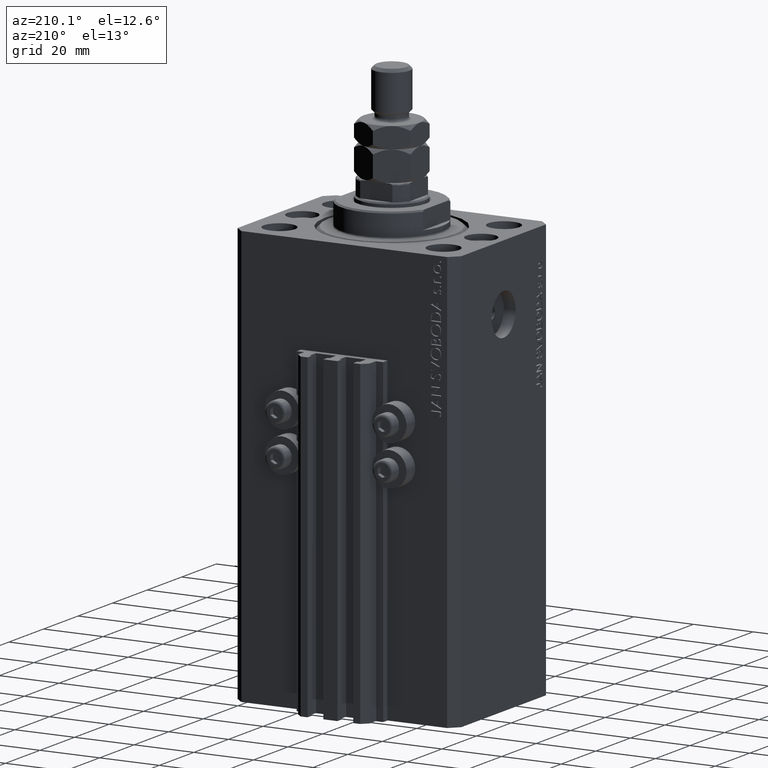
[diagram: clean part render]
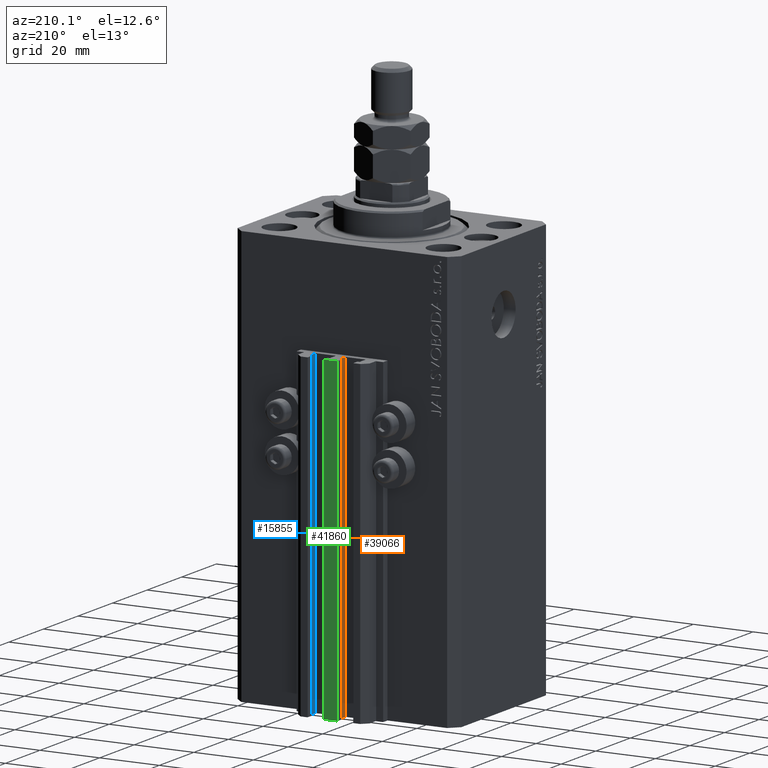
[diagram: same view with three faces highlighted in distinct colors, each labeled with its STEP entity id]
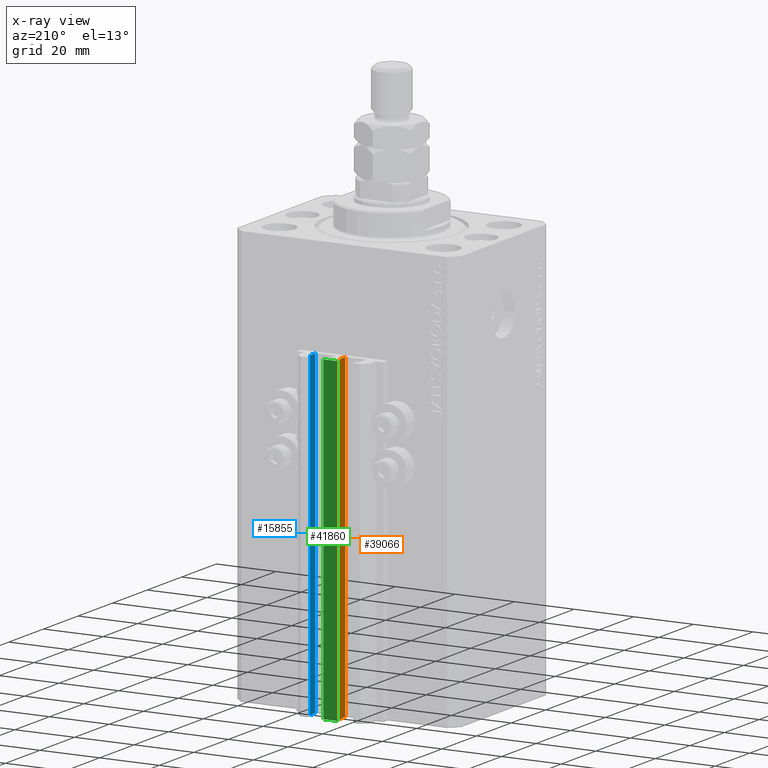
[diagram: x-ray of the same camera — body ghosted, the three highlighted faces saturated]
A machine part, auxiliary view with three faces highlighted in distinct colors.
The next image is the same camera in x-ray (body ghosted, the three faces saturated) — at least one of them is partly hidden behind the body in this view.
Their STEP definitions:

[orange] entity #39066 — the highlighted planar face has unit normal (-1, 0, 0).
#440 = ORIENTED_EDGE ( 'NONE', *, *, #8337, .T. ) ;
#634 = CARTESIAN_POINT ( 'NONE',  ( -1.599999999999997868, 32.90000000000001279, -33.00000000000000000 ) ) ;
#1883 = DIRECTION ( 'NONE',  ( -1.000000000000000000, 6.776263578034378061E-17, 0.000000000000000000 ) ) ;
#2858 = CARTESIAN_POINT ( 'NONE',  ( -1.600000000000000533, 32.90000000000001279, -140.0000000000000000 ) ) ;
#8337 = EDGE_CURVE ( 'NONE', #46214, #12494, #34998, .T. ) ;
#8568 = ORIENTED_EDGE ( 'NONE', *, *, #9926, .F. ) ;
#9541 = DIRECTION ( 'NONE',  ( -6.776263578034378061E-17, -1.000000000000000000, 0.000000000000000000 ) ) ;
#9752 = CARTESIAN_POINT ( 'NONE',  ( -1.599999999999997868, 32.90000000000001279, -140.0000000000000000 ) ) ;
#9926 = EDGE_CURVE ( 'NONE', #12067, #13195, #38427, .T. ) ;
#12067 = VERTEX_POINT ( 'NONE', #634 ) ;
#12395 = CARTESIAN_POINT ( 'NONE',  ( -1.600000000000000755, 29.69999999999999929, -140.0000000000000000 ) ) ;
#12494 = VERTEX_POINT ( 'NONE', #12395 ) ;
#13195 = VERTEX_POINT ( 'NONE', #43363 ) ;
#14063 = ORIENTED_EDGE ( 'NONE', *, *, #37496, .F. ) ;
#14618 = DIRECTION ( 'NONE',  ( -6.776263578034378061E-17, -1.000000000000000000, 0.000000000000000000 ) ) ;
#15725 = AXIS2_PLACEMENT_3D ( 'NONE', #2858, #1883, #9541 ) ;
#15865 = VECTOR ( 'NONE', #19435, 1000.000000000000000 ) ;
#19435 = DIRECTION ( 'NONE',  ( -6.776263578034378061E-17, -1.000000000000000000, 0.000000000000000000 ) ) ;
#19519 = LINE ( 'NONE', #26454, #43142 ) ;
#19848 = VECTOR ( 'NONE', #14618, 1000.000000000000000 ) ;
#20348 = EDGE_LOOP ( 'NONE', ( #8568, #14063, #440, #37431 ) ) ;
#21948 = DIRECTION ( 'NONE',  ( 0.000000000000000000, 0.000000000000000000, 1.000000000000000000 ) ) ;
#22425 = CARTESIAN_POINT ( 'NONE',  ( -1.599999999999997868, 32.90000000000001279, -140.0000000000000000 ) ) ;
#22497 = DIRECTION ( 'NONE',  ( 0.000000000000000000, 0.000000000000000000, 1.000000000000000000 ) ) ;
#22651 = CARTESIAN_POINT ( 'NONE',  ( -1.600000000000000533, 32.90000000000001279, -33.00000000000000000 ) ) ;
#26454 = CARTESIAN_POINT ( 'NONE',  ( -1.600000000000000755, 29.69999999999999929, -140.0000000000000000 ) ) ;
#28543 = PLANE ( 'NONE',  #15725 ) ;
#29397 = EDGE_CURVE ( 'NONE', #12494, #13195, #19519, .T. ) ;
#29906 = CARTESIAN_POINT ( 'NONE',  ( -1.600000000000000533, 32.90000000000001279, -140.0000000000000000 ) ) ;
#33029 = VECTOR ( 'NONE', #21948, 1000.000000000000000 ) ;
#34259 = LINE ( 'NONE', #22425, #33029 ) ;
#34998 = LINE ( 'NONE', #29906, #19848 ) ;
#35694 = FACE_OUTER_BOUND ( 'NONE', #20348, .T. ) ;
#37431 = ORIENTED_EDGE ( 'NONE', *, *, #29397, .T. ) ;
#37496 = EDGE_CURVE ( 'NONE', #46214, #12067, #34259, .T. ) ;
#38427 = LINE ( 'NONE', #22651, #15865 ) ;
#39066 = ADVANCED_FACE ( 'NONE', ( #35694 ), #28543, .T. ) ;
#43142 = VECTOR ( 'NONE', #22497, 1000.000000000000000 ) ;
#43363 = CARTESIAN_POINT ( 'NONE',  ( -1.600000000000000755, 29.69999999999999929, -33.00000000000000000 ) ) ;
#46214 = VERTEX_POINT ( 'NONE', #9752 ) ;

[blue] entity #15855 — the highlighted planar face has unit normal (-1, 0, 0).
#886 = VERTEX_POINT ( 'NONE', #8135 ) ;
#1541 = VERTEX_POINT ( 'NONE', #2099 ) ;
#2099 = CARTESIAN_POINT ( 'NONE',  ( 8.399999999999998579, 32.90000000000001990, -140.0000000000000000 ) ) ;
#6860 = VECTOR ( 'NONE', #33240, 1000.000000000000000 ) ;
#8135 = CARTESIAN_POINT ( 'NONE',  ( 8.400000000000000355, 29.70000000000000284, -33.00000000000000000 ) ) ;
#8560 = ORIENTED_EDGE ( 'NONE', *, *, #37331, .T. ) ;
#9216 = DIRECTION ( 'NONE',  ( -5.421010862427496532E-16, -1.000000000000000000, 0.000000000000000000 ) ) ;
#9418 = PLANE ( 'NONE',  #34949 ) ;
#10216 = CARTESIAN_POINT ( 'NONE',  ( 8.400000000000000355, 32.90000000000001990, -140.0000000000000000 ) ) ;
#10888 = ORIENTED_EDGE ( 'NONE', *, *, #44923, .F. ) ;
#12307 = ORIENTED_EDGE ( 'NONE', *, *, #27913, .F. ) ;
#14058 = CARTESIAN_POINT ( 'NONE',  ( 8.400000000000000355, 29.70000000000000284, -140.0000000000000000 ) ) ;
#15855 = ADVANCED_FACE ( 'NONE', ( #36551 ), #9418, .T. ) ;
#15901 = CARTESIAN_POINT ( 'NONE',  ( 8.400000000000000355, 32.90000000000001990, -33.00000000000000000 ) ) ;
#16107 = ORIENTED_EDGE ( 'NONE', *, *, #40306, .T. ) ;
#16709 = VECTOR ( 'NONE', #9216, 1000.000000000000000 ) ;
#17559 = DIRECTION ( 'NONE',  ( -5.421010862427496532E-16, -1.000000000000000000, 0.000000000000000000 ) ) ;
#20597 = CARTESIAN_POINT ( 'NONE',  ( 8.399999999999998579, 32.90000000000001990, -33.00000000000000000 ) ) ;
#20770 = CARTESIAN_POINT ( 'NONE',  ( 8.400000000000000355, 32.90000000000001990, -140.0000000000000000 ) ) ;
#21754 = DIRECTION ( 'NONE',  ( -1.000000000000000000, 5.421010862427496532E-16, 0.000000000000000000 ) ) ;
#22695 = VERTEX_POINT ( 'NONE', #45034 ) ;
#25851 = CARTESIAN_POINT ( 'NONE',  ( 8.399999999999998579, 32.90000000000001990, -140.0000000000000000 ) ) ;
#27913 = EDGE_CURVE ( 'NONE', #1541, #36602, #29529, .T. ) ;
#28736 = DIRECTION ( 'NONE',  ( -5.421010862427496532E-16, -1.000000000000000000, 0.000000000000000000 ) ) ;
#29347 = LINE ( 'NONE', #14058, #32250 ) ;
#29529 = LINE ( 'NONE', #25851, #6860 ) ;
#31432 = LINE ( 'NONE', #15901, #16709 ) ;
#32250 = VECTOR ( 'NONE', #40211, 1000.000000000000000 ) ;
#33240 = DIRECTION ( 'NONE',  ( 0.000000000000000000, 0.000000000000000000, 1.000000000000000000 ) ) ;
#34949 = AXIS2_PLACEMENT_3D ( 'NONE', #20770, #21754, #17559 ) ;
#36374 = EDGE_LOOP ( 'NONE', ( #10888, #12307, #16107, #8560 ) ) ;
#36551 = FACE_OUTER_BOUND ( 'NONE', #36374, .T. ) ;
#36602 = VERTEX_POINT ( 'NONE', #20597 ) ;
#36618 = LINE ( 'NONE', #10216, #44124 ) ;
#37331 = EDGE_CURVE ( 'NONE', #22695, #886, #29347, .T. ) ;
#40211 = DIRECTION ( 'NONE',  ( 0.000000000000000000, 0.000000000000000000, 1.000000000000000000 ) ) ;
#40306 = EDGE_CURVE ( 'NONE', #1541, #22695, #36618, .T. ) ;
#44124 = VECTOR ( 'NONE', #28736, 1000.000000000000000 ) ;
#44923 = EDGE_CURVE ( 'NONE', #36602, #886, #31432, .T. ) ;
#45034 = CARTESIAN_POINT ( 'NONE',  ( 8.400000000000000355, 29.70000000000000284, -140.0000000000000000 ) ) ;

[green] entity #41860 — the highlighted planar face has unit normal (0, -1, 0).
#173 = LINE ( 'NONE', #1557, #9565 ) ;
#1557 = CARTESIAN_POINT ( 'NONE',  ( -2.350000000000003642, 35.50000000000001421, -140.0000000000000000 ) ) ;
#7773 = VERTEX_POINT ( 'NONE', #9597 ) ;
#9565 = VECTOR ( 'NONE', #45826, 1000.000000000000000 ) ;
#9597 = CARTESIAN_POINT ( 'NONE',  ( 2.349999999999999645, 35.50000000000001421, -140.0000000000000000 ) ) ;
#11019 = DIRECTION ( 'NONE',  ( 0.000000000000000000, -0.000000000000000000, -1.000000000000000000 ) ) ;
#13421 = ORIENTED_EDGE ( 'NONE', *, *, #17796, .T. ) ;
#13754 = VECTOR ( 'NONE', #36202, 1000.000000000000000 ) ;
#14737 = PLANE ( 'NONE',  #33173 ) ;
#15630 = EDGE_CURVE ( 'NONE', #7773, #30350, #39831, .T. ) ;
#15891 = ORIENTED_EDGE ( 'NONE', *, *, #32946, .T. ) ;
#17796 = EDGE_CURVE ( 'NONE', #36397, #30350, #25360, .T. ) ;
#17898 = VERTEX_POINT ( 'NONE', #48767 ) ;
#18917 = DIRECTION ( 'NONE',  ( 0.000000000000000000, -1.000000000000000000, 0.000000000000000000 ) ) ;
#19398 = CARTESIAN_POINT ( 'NONE',  ( -2.350000000000003642, 35.50000000000001421, -140.0000000000000000 ) ) ;
#20255 = VECTOR ( 'NONE', #28225, 1000.000000000000000 ) ;
#21415 = CARTESIAN_POINT ( 'NONE',  ( -2.350000000000003642, 35.50000000000001421, -33.00000000000000000 ) ) ;
#22046 = ORIENTED_EDGE ( 'NONE', *, *, #42998, .F. ) ;
#22348 = VECTOR ( 'NONE', #44268, 1000.000000000000000 ) ;
#24289 = LINE ( 'NONE', #39333, #20255 ) ;
#24669 = CARTESIAN_POINT ( 'NONE',  ( -2.350000000000003642, 35.50000000000001421, -33.00000000000000000 ) ) ;
#25281 = CARTESIAN_POINT ( 'NONE',  ( 2.349999999999999645, 35.50000000000001421, -140.0000000000000000 ) ) ;
#25360 = LINE ( 'NONE', #21415, #13754 ) ;
#27053 = ORIENTED_EDGE ( 'NONE', *, *, #15630, .F. ) ;
#28225 = DIRECTION ( 'NONE',  ( 0.000000000000000000, 0.000000000000000000, 1.000000000000000000 ) ) ;
#30350 = VERTEX_POINT ( 'NONE', #40558 ) ;
#32946 = EDGE_CURVE ( 'NONE', #17898, #36397, #24289, .T. ) ;
#33173 = AXIS2_PLACEMENT_3D ( 'NONE', #19398, #18917, #11019 ) ;
#36202 = DIRECTION ( 'NONE',  ( 1.000000000000000000, 0.000000000000000000, 0.000000000000000000 ) ) ;
#36397 = VERTEX_POINT ( 'NONE', #24669 ) ;
#39333 = CARTESIAN_POINT ( 'NONE',  ( -2.350000000000003642, 35.50000000000001421, -140.0000000000000000 ) ) ;
#39831 = LINE ( 'NONE', #25281, #22348 ) ;
#40558 = CARTESIAN_POINT ( 'NONE',  ( 2.349999999999999645, 35.50000000000001421, -33.00000000000000000 ) ) ;
#40891 = EDGE_LOOP ( 'NONE', ( #13421, #27053, #22046, #15891 ) ) ;
#41860 = ADVANCED_FACE ( 'NONE', ( #45317 ), #14737, .F. ) ;
#42998 = EDGE_CURVE ( 'NONE', #17898, #7773, #173, .T. ) ;
#44268 = DIRECTION ( 'NONE',  ( 0.000000000000000000, 0.000000000000000000, 1.000000000000000000 ) ) ;
#45317 = FACE_OUTER_BOUND ( 'NONE', #40891, .T. ) ;
#45826 = DIRECTION ( 'NONE',  ( 1.000000000000000000, 0.000000000000000000, 0.000000000000000000 ) ) ;
#48767 = CARTESIAN_POINT ( 'NONE',  ( -2.350000000000003642, 35.50000000000001421, -140.0000000000000000 ) ) ;